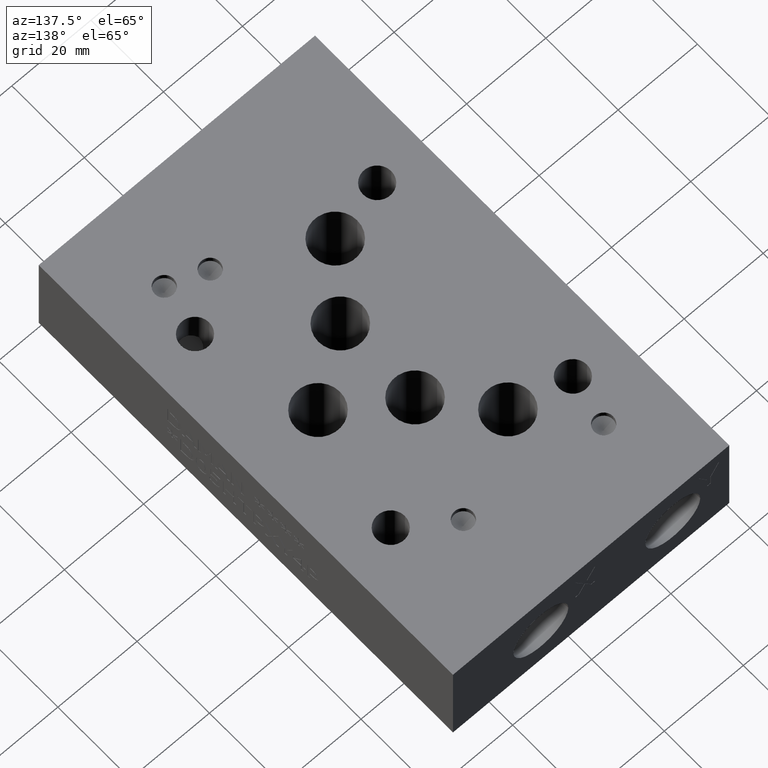
[diagram: clean part render]
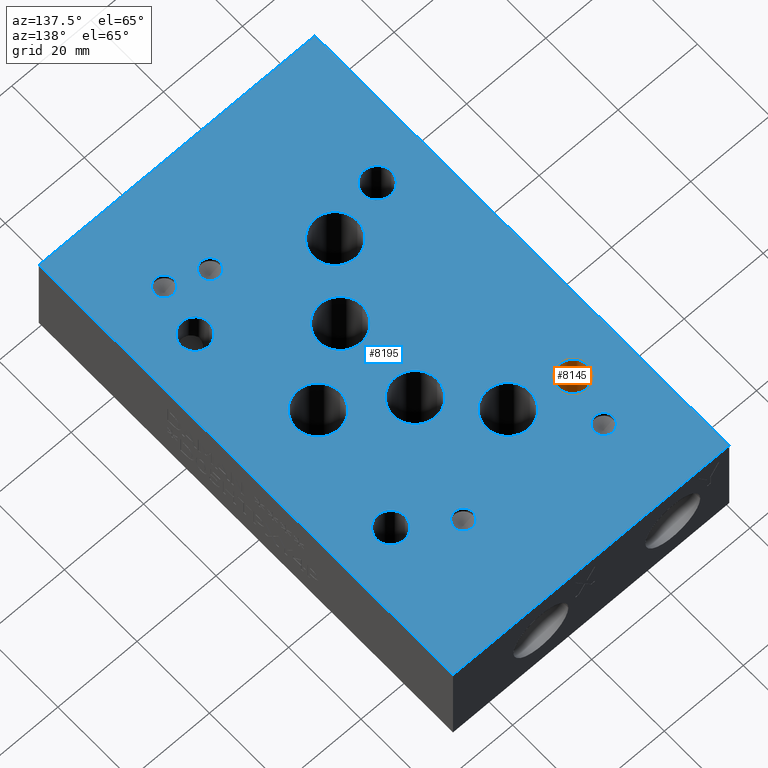
[diagram: same view with the hole feature highlighted: cylindrical wall and planar end face, labeled with their STEP entity ids]
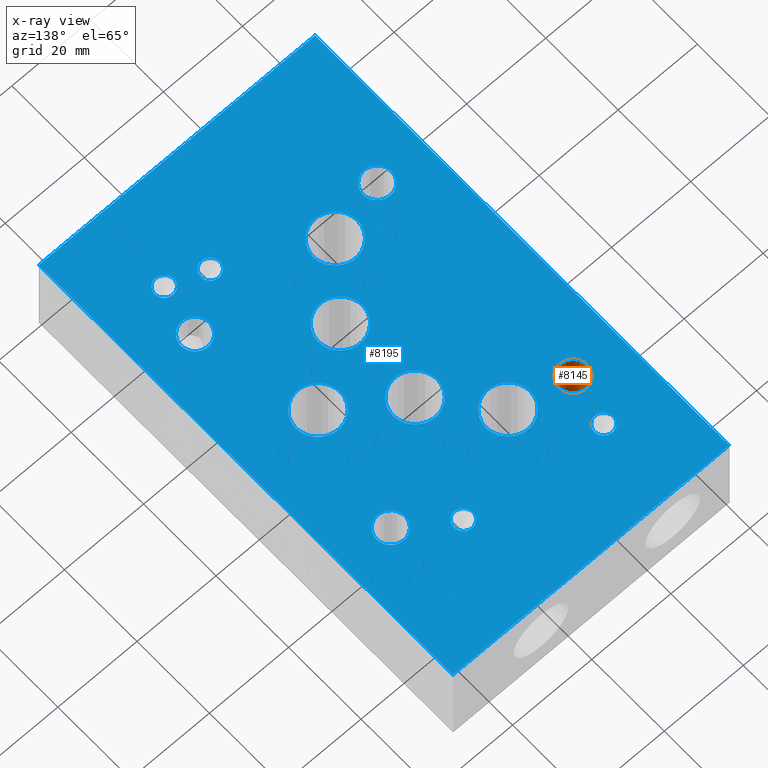
[diagram: x-ray of the same camera — body ghosted, the hole faces saturated]
A machine part, auxiliary view. The highlighted faces form one hole feature of diameter 7.1374 mm: the cylindrical wall (entity #8145, orange) and its adjacent planar end face (entity #8195, blue) — they share a circular edge in the B-rep.
The next image is the same camera in x-ray (body ghosted, the hole faces saturated) — the bore reads through the body.
Wall:
#145=B_SPLINE_CURVE_WITH_KNOTS('',3,(#13252,#13253,#13254,#13255,#13256,
#13257,#13258,#13259,#13260,#13261,#13262,#13263,#13264,#13265,#13266,#13267,
#13268,#13269),.UNSPECIFIED.,.F.,.F.,(4,2,2,2,2,2,2,2,4),(2.39074871442482,
2.42851078688732,2.54822982737239,2.78766790834252,2.90609728889542,3.02452666944832,
3.13326355568909,3.24200044192987,3.25808382290302),.UNSPECIFIED.);
#146=B_SPLINE_CURVE_WITH_KNOTS('',3,(#13271,#13272,#13273,#13274,#13275,
#13276),.UNSPECIFIED.,.F.,.F.,(4,2,4),(1.78812976311942,1.86625273411116,
1.9443757051029),.UNSPECIFIED.);
#147=B_SPLINE_CURVE_WITH_KNOTS('',3,(#13278,#13279,#13280,#13281,#13282,
#13283,#13284,#13285,#13286,#13287,#13288,#13289,#13290,#13291,#13292,#13293,
#13294,#13295),.UNSPECIFIED.,.F.,.F.,(4,2,2,2,2,2,2,2,4),(1.3594996699015,
1.37558305087465,1.48431993711543,1.5930568233562,1.7114862039091,1.82991558446201,
2.06935366543213,2.1890727059172,2.2268347783797),.UNSPECIFIED.);
#148=B_SPLINE_CURVE_WITH_KNOTS('',3,(#13296,#13297,#13298,#13299,#13300,
#13301,#13302,#13303,#13304,#13305,#13306,#13307,#13308,#13309,#13310,#13311,
#13312,#13313,#13314,#13315,#13316),.UNSPECIFIED.,.F.,.F.,(4,2,2,2,3,2,
2,2,2,4),(-0.561485721717972,-0.41025701575969,-0.264184277794467,-0.118111539829243,
0.,0.0920916361810437,0.184183272362087,0.368366544724175,0.552549817086262,
0.593107513323987),.UNSPECIFIED.);
#596=FACE_BOUND('',#1540,.T.);
#629=CIRCLE('',#8224,3.5687);
#644=CIRCLE('',#8541,3.5687);
#693=CYLINDRICAL_SURFACE('',#8540,3.5687);
#1082=FACE_OUTER_BOUND('',#1539,.T.);
#1539=EDGE_LOOP('',(#7243,#7244,#7245,#7246));
#1540=EDGE_LOOP('',(#7247,#7248,#7249,#7250));
#2492=LINE('',#13248,#3402);
#3402=VECTOR('',#10169,3.5687);
#3451=VERTEX_POINT('',#10432);
#4119=VERTEX_POINT('',#13247);
#4120=VERTEX_POINT('',#13250);
#4121=VERTEX_POINT('',#13251);
#4122=VERTEX_POINT('',#13270);
#4123=VERTEX_POINT('',#13277);
#4189=EDGE_CURVE('',#3451,#3451,#629,.T.);
#5185=EDGE_CURVE('',#3451,#4119,#2492,.T.);
#5186=EDGE_CURVE('',#4119,#4119,#644,.T.);
#5187=EDGE_CURVE('',#4120,#4121,#145,.T.);
#5188=EDGE_CURVE('',#4120,#4122,#146,.T.);
#5189=EDGE_CURVE('',#4123,#4122,#147,.T.);
#5190=EDGE_CURVE('',#4123,#4121,#148,.T.);
#7243=ORIENTED_EDGE('',*,*,#4189,.F.);
#7244=ORIENTED_EDGE('',*,*,#5185,.T.);
#7245=ORIENTED_EDGE('',*,*,#5186,.F.);
#7246=ORIENTED_EDGE('',*,*,#5185,.F.);
#7247=ORIENTED_EDGE('',*,*,#5187,.F.);
#7248=ORIENTED_EDGE('',*,*,#5188,.T.);
#7249=ORIENTED_EDGE('',*,*,#5189,.F.);
#7250=ORIENTED_EDGE('',*,*,#5190,.T.);
#8145=ADVANCED_FACE('',(#1082,#596),#693,.F.);
#8224=AXIS2_PLACEMENT_3D('',#10433,#8672,#8673);
#8540=AXIS2_PLACEMENT_3D('',#13246,#10167,#10168);
#8541=AXIS2_PLACEMENT_3D('',#13249,#10170,#10171);
#8672=DIRECTION('center_axis',(0.,0.,1.));
#8673=DIRECTION('ref_axis',(1.,0.,0.));
#10167=DIRECTION('center_axis',(0.,0.,-1.));
#10168=DIRECTION('ref_axis',(1.,0.,0.));
#10169=DIRECTION('',(0.,0.,1.));
#10170=DIRECTION('center_axis',(0.,0.,-1.));
#10171=DIRECTION('ref_axis',(1.,0.,0.));
#10432=CARTESIAN_POINT('',(8.3439,84.1502,-1.77635683940025E-14));
#10433=CARTESIAN_POINT('Origin',(11.9126,84.1502,0.));
#13246=CARTESIAN_POINT('Origin',(11.9126,84.1502,136.340282015258));
#13247=CARTESIAN_POINT('',(8.3439,84.1502,25.4));
#13248=CARTESIAN_POINT('',(8.3439,84.1502,136.340282015258));
#13249=CARTESIAN_POINT('Origin',(11.9126,84.1502,25.4));
#13250=CARTESIAN_POINT('',(8.97570185657554,86.1775749,11.8982972955294));
#13251=CARTESIAN_POINT('',(14.8494981434245,86.1775749,7.37150204992584));
#13252=CARTESIAN_POINT('Ctrl Pts',(8.97570185657554,86.1775749,11.8982972955294));
#13253=CARTESIAN_POINT('Ctrl Pts',(8.99389973310147,86.2039367286797,11.7780128893835));
#13254=CARTESIAN_POINT('Ctrl Pts',(9.01608079991804,86.2353178767443,11.6590637539243));
#13255=CARTESIAN_POINT('Ctrl Pts',(9.12466402353244,86.3823143055666,11.1686329887197));
#13256=CARTESIAN_POINT('Ctrl Pts',(9.24581326000249,86.5320529563778,10.8089874363444));
#13257=CARTESIAN_POINT('Ctrl Pts',(9.71976579528688,87.0005445584066,9.77616786292625));
#13258=CARTESIAN_POINT('Ctrl Pts',(10.1862139534486,87.3340165167231,9.14969986857952));
#13259=CARTESIAN_POINT('Ctrl Pts',(11.0608741867527,87.629209681587,8.39417310260469));
#13260=CARTESIAN_POINT('Ctrl Pts',(11.4100987458025,87.7030615193763,8.1508637367299));
#13261=CARTESIAN_POINT('Ctrl Pts',(12.1571739213819,87.7300765419145,7.75866273511157));
#13262=CARTESIAN_POINT('Ctrl Pts',(12.5551144958514,87.6814120911789,7.60981870093533));
#13263=CARTESIAN_POINT('Ctrl Pts',(13.2596831045713,87.4735457005353,7.42608488679604));
#13264=CARTESIAN_POINT('Ctrl Pts',(13.6141465259832,87.3109108879078,7.371880532487));
#13265=CARTESIAN_POINT('Ctrl Pts',(14.2520695132581,86.8727423048925,7.33112644133141));
#13266=CARTESIAN_POINT('Ctrl Pts',(14.5353680621745,86.597176738338,7.34242668834895));
#13267=CARTESIAN_POINT('Ctrl Pts',(14.7866854998948,86.2663564062275,7.36500246439352));
#13268=CARTESIAN_POINT('Ctrl Pts',(14.8184676153082,86.2225263790846,7.36815529309775));
#13269=CARTESIAN_POINT('Ctrl Pts',(14.8494981434245,86.1775749,7.37150204992584));
#13270=CARTESIAN_POINT('',(8.97570185657554,86.1775749,13.5017027044706));
#13271=CARTESIAN_POINT('Ctrl Pts',(8.97570185657554,86.1775749,11.8982972955294));
#13272=CARTESIAN_POINT('Ctrl Pts',(8.96403284106997,86.1606709174293,12.1711549962927));
#13273=CARTESIAN_POINT('Ctrl Pts',(8.9586286740719,86.1526168136516,12.4395900966942));
#13274=CARTESIAN_POINT('Ctrl Pts',(8.9586286740719,86.1526168136516,12.9604099033058));
#13275=CARTESIAN_POINT('Ctrl Pts',(8.96403284106997,86.1606709174293,13.2288450037073));
#13276=CARTESIAN_POINT('Ctrl Pts',(8.97570185657554,86.1775749,13.5017027044706));
#13277=CARTESIAN_POINT('',(14.8494981434245,86.1775749,18.0284979500742));
#13278=CARTESIAN_POINT('Ctrl Pts',(14.8494981434245,86.1775749,18.0284979500742));
#13279=CARTESIAN_POINT('Ctrl Pts',(14.8184676153082,86.2225263790846,18.0318447069022));
#13280=CARTESIAN_POINT('Ctrl Pts',(14.7866854998948,86.2663564062275,18.0349975356065));
#13281=CARTESIAN_POINT('Ctrl Pts',(14.5353680621745,86.5971767383379,18.057573311651));
#13282=CARTESIAN_POINT('Ctrl Pts',(14.2520695132581,86.8727423048925,18.0688735586686));
#13283=CARTESIAN_POINT('Ctrl Pts',(13.6141465259831,87.3109108879078,18.028119467513));
#13284=CARTESIAN_POINT('Ctrl Pts',(13.2596831045713,87.4735457005353,17.973915113204));
#13285=CARTESIAN_POINT('Ctrl Pts',(12.5551144958514,87.6814120911789,17.7901812990647));
#13286=CARTESIAN_POINT('Ctrl Pts',(12.1571739213819,87.7300765419145,17.6413372648884));
#13287=CARTESIAN_POINT('Ctrl Pts',(11.4100987458025,87.7030615193763,17.2491362632701));
#13288=CARTESIAN_POINT('Ctrl Pts',(11.0608741867527,87.629209681587,17.0058268973953));
#13289=CARTESIAN_POINT('Ctrl Pts',(10.1862139534486,87.3340165167231,16.2503001314205));
#13290=CARTESIAN_POINT('Ctrl Pts',(9.71976579528687,87.0005445584066,15.6238321370737));
#13291=CARTESIAN_POINT('Ctrl Pts',(9.24581326000249,86.5320529563778,14.5910125636556));
#13292=CARTESIAN_POINT('Ctrl Pts',(9.12466402353244,86.3823143055665,14.2313670112802));
#13293=CARTESIAN_POINT('Ctrl Pts',(9.01608079991804,86.2353178767443,13.7409362460757));
#13294=CARTESIAN_POINT('Ctrl Pts',(8.99389973310147,86.2039367286797,13.6219871106165));
#13295=CARTESIAN_POINT('Ctrl Pts',(8.97570185657554,86.1775749,13.5017027044706));
#13296=CARTESIAN_POINT('Ctrl Pts',(14.8494981434245,86.1775749,18.0284979500742));
#13297=CARTESIAN_POINT('Ctrl Pts',(15.0164886833449,85.9356688733141,17.5890639636878));
#13298=CARTESIAN_POINT('Ctrl Pts',(15.1456905599942,85.6849309234344,17.1259766885174));
#13299=CARTESIAN_POINT('Ctrl Pts',(15.3362171948747,85.1905041562585,16.1976760680939));
#13300=CARTESIAN_POINT('Ctrl Pts',(15.3993271823331,84.9466434850534,15.7333736635573));
#13301=CARTESIAN_POINT('Ctrl Pts',(15.4739493077069,84.4794103474131,14.8116930315051));
#13302=CARTESIAN_POINT('Ctrl Pts',(15.4846379204943,84.2531756679064,14.3557020158475));
#13303=CARTESIAN_POINT('Ctrl Pts',(15.4768739194686,83.9176327166314,13.5415569907774));
#13304=CARTESIAN_POINT('Ctrl Pts',(15.4607799362148,83.768049728192,13.0937051327641));
#13305=CARTESIAN_POINT('Ctrl Pts',(15.4607799362148,83.768049728192,12.7));
#13306=CARTESIAN_POINT('Ctrl Pts',(15.4607799362148,83.768049728192,12.3930278793965));
#13307=CARTESIAN_POINT('Ctrl Pts',(15.4692598656739,83.8416849298672,12.1102162316419));
#13308=CARTESIAN_POINT('Ctrl Pts',(15.4807611817998,84.0351542108545,11.5542025267796));
#13309=CARTESIAN_POINT('Ctrl Pts',(15.4835919028878,84.155365206681,11.281127764228));
#13310=CARTESIAN_POINT('Ctrl Pts',(15.4692711395723,84.5390682599603,10.4554886687153));
#13311=CARTESIAN_POINT('Ctrl Pts',(15.4296878568947,84.8258648591993,9.9006552610877));
#13312=CARTESIAN_POINT('Ctrl Pts',(15.2665844089851,85.40607459861,8.79325884475476));
#13313=CARTESIAN_POINT('Ctrl Pts',(15.1445090860163,85.7004317691492,8.24454155719337));
#13314=CARTESIAN_POINT('Ctrl Pts',(14.9333893972338,86.0517579785541,7.60059215583747));
#13315=CARTESIAN_POINT('Ctrl Pts',(14.8927901992759,86.1148611126018,7.485424675068));
#13316=CARTESIAN_POINT('Ctrl Pts',(14.8494981434245,86.1775749,7.37150204992584));
End face:
#610=FACE_BOUND('',#1604,.T.);
#611=FACE_BOUND('',#1605,.T.);
#612=FACE_BOUND('',#1606,.T.);
#613=FACE_BOUND('',#1607,.T.);
#614=FACE_BOUND('',#1608,.T.);
#615=FACE_BOUND('',#1609,.T.);
#616=FACE_BOUND('',#1610,.T.);
#617=FACE_BOUND('',#1611,.T.);
#618=FACE_BOUND('',#1612,.T.);
#619=FACE_BOUND('',#1613,.T.);
#620=FACE_BOUND('',#1614,.T.);
#621=FACE_BOUND('',#1615,.T.);
#622=FACE_BOUND('',#1616,.T.);
#643=CIRCLE('',#8539,3.5687);
#644=CIRCLE('',#8541,3.5687);
#645=CIRCLE('',#8543,3.5687);
#646=CIRCLE('',#8545,3.5687);
#658=CIRCLE('',#8567,5.5626);
#661=CIRCLE('',#8573,5.5626);
#664=CIRCLE('',#8579,5.5626);
#667=CIRCLE('',#8585,5.5626);
#670=CIRCLE('',#8591,5.5626);
#682=CIRCLE('',#8619,2.3749);
#684=CIRCLE('',#8623,2.3749);
#686=CIRCLE('',#8627,2.3749);
#688=CIRCLE('',#8631,2.3749);
#1132=FACE_OUTER_BOUND('',#1603,.T.);
#1603=EDGE_LOOP('',(#7448,#7449,#7450,#7451));
#1604=EDGE_LOOP('',(#7452));
#1605=EDGE_LOOP('',(#7453));
#1606=EDGE_LOOP('',(#7454));
#1607=EDGE_LOOP('',(#7455));
#1608=EDGE_LOOP('',(#7456));
#1609=EDGE_LOOP('',(#7457));
#1610=EDGE_LOOP('',(#7458));
#1611=EDGE_LOOP('',(#7459));
#1612=EDGE_LOOP('',(#7460));
#1613=EDGE_LOOP('',(#7461));
#1614=EDGE_LOOP('',(#7462));
#1615=EDGE_LOOP('',(#7463));
#1616=EDGE_LOOP('',(#7464));
#1982=LINE('',#12001,#2892);
#2461=LINE('',#13116,#3371);
#2524=LINE('',#13486,#3434);
#2526=LINE('',#13489,#3436);
#2892=VECTOR('',#9267,10.);
#3371=VECTOR('',#10100,10.);
#3434=VECTOR('',#10385,10.);
#3436=VECTOR('',#10389,10.);
#3760=VERTEX_POINT('',#11998);
#3761=VERTEX_POINT('',#12000);
#4092=VERTEX_POINT('',#13115);
#4114=VERTEX_POINT('',#13184);
#4119=VERTEX_POINT('',#13247);
#4124=VERTEX_POINT('',#13318);
#4125=VERTEX_POINT('',#13322);
#4133=VERTEX_POINT('',#13357);
#4136=VERTEX_POINT('',#13368);
#4139=VERTEX_POINT('',#13379);
#4142=VERTEX_POINT('',#13390);
#4145=VERTEX_POINT('',#13401);
#4160=VERTEX_POINT('',#13454);
#4163=VERTEX_POINT('',#13463);
#4166=VERTEX_POINT('',#13472);
#4169=VERTEX_POINT('',#13481);
#4170=VERTEX_POINT('',#13485);
#4649=EDGE_CURVE('',#3761,#3760,#1982,.T.);
#5145=EDGE_CURVE('',#4092,#3761,#2461,.T.);
#5180=EDGE_CURVE('',#4114,#4114,#643,.T.);
#5186=EDGE_CURVE('',#4119,#4119,#644,.T.);
#5192=EDGE_CURVE('',#4124,#4124,#645,.T.);
#5194=EDGE_CURVE('',#4125,#4125,#646,.T.);
#5211=EDGE_CURVE('',#4133,#4133,#658,.T.);
#5216=EDGE_CURVE('',#4136,#4136,#661,.T.);
#5221=EDGE_CURVE('',#4139,#4139,#664,.T.);
#5226=EDGE_CURVE('',#4142,#4142,#667,.T.);
#5231=EDGE_CURVE('',#4145,#4145,#670,.T.);
#5252=EDGE_CURVE('',#4160,#4160,#682,.T.);
#5256=EDGE_CURVE('',#4163,#4163,#684,.T.);
#5260=EDGE_CURVE('',#4166,#4166,#686,.T.);
#5264=EDGE_CURVE('',#4169,#4169,#688,.T.);
#5266=EDGE_CURVE('',#4170,#4092,#2524,.T.);
#5268=EDGE_CURVE('',#3760,#4170,#2526,.T.);
#7448=ORIENTED_EDGE('',*,*,#5145,.T.);
#7449=ORIENTED_EDGE('',*,*,#4649,.T.);
#7450=ORIENTED_EDGE('',*,*,#5268,.T.);
#7451=ORIENTED_EDGE('',*,*,#5266,.T.);
#7452=ORIENTED_EDGE('',*,*,#5180,.T.);
#7453=ORIENTED_EDGE('',*,*,#5186,.T.);
#7454=ORIENTED_EDGE('',*,*,#5192,.T.);
#7455=ORIENTED_EDGE('',*,*,#5194,.T.);
#7456=ORIENTED_EDGE('',*,*,#5211,.T.);
#7457=ORIENTED_EDGE('',*,*,#5216,.T.);
#7458=ORIENTED_EDGE('',*,*,#5221,.T.);
#7459=ORIENTED_EDGE('',*,*,#5226,.T.);
#7460=ORIENTED_EDGE('',*,*,#5231,.T.);
#7461=ORIENTED_EDGE('',*,*,#5252,.T.);
#7462=ORIENTED_EDGE('',*,*,#5256,.T.);
#7463=ORIENTED_EDGE('',*,*,#5260,.T.);
#7464=ORIENTED_EDGE('',*,*,#5264,.T.);
#7781=PLANE('',#8635);
#8195=ADVANCED_FACE('',(#1132,#610,#611,#612,#613,#614,#615,#616,#617,#618,
#619,#620,#621,#622),#7781,.T.);
#8539=AXIS2_PLACEMENT_3D('',#13186,#10165,#10166);
#8541=AXIS2_PLACEMENT_3D('',#13249,#10170,#10171);
#8543=AXIS2_PLACEMENT_3D('',#13320,#10175,#10176);
#8545=AXIS2_PLACEMENT_3D('',#13324,#10180,#10181);
#8567=AXIS2_PLACEMENT_3D('',#13359,#10229,#10230);
#8573=AXIS2_PLACEMENT_3D('',#13370,#10243,#10244);
#8579=AXIS2_PLACEMENT_3D('',#13381,#10257,#10258);
#8585=AXIS2_PLACEMENT_3D('',#13392,#10271,#10272);
#8591=AXIS2_PLACEMENT_3D('',#13403,#10285,#10286);
#8619=AXIS2_PLACEMENT_3D('',#13455,#10350,#10351);
#8623=AXIS2_PLACEMENT_3D('',#13464,#10360,#10361);
#8627=AXIS2_PLACEMENT_3D('',#13473,#10370,#10371);
#8631=AXIS2_PLACEMENT_3D('',#13482,#10380,#10381);
#8635=AXIS2_PLACEMENT_3D('',#13491,#10392,#10393);
#9267=DIRECTION('',(0.,1.,0.));
#10100=DIRECTION('',(1.,0.,0.));
#10165=DIRECTION('center_axis',(0.,0.,-1.));
#10166=DIRECTION('ref_axis',(1.,0.,0.));
#10170=DIRECTION('center_axis',(0.,0.,-1.));
#10171=DIRECTION('ref_axis',(1.,0.,0.));
#10175=DIRECTION('center_axis',(0.,0.,-1.));
#10176=DIRECTION('ref_axis',(1.,0.,0.));
#10180=DIRECTION('center_axis',(0.,0.,-1.));
#10181=DIRECTION('ref_axis',(1.,0.,0.));
#10229=DIRECTION('center_axis',(0.,0.,-1.));
#10230=DIRECTION('ref_axis',(1.,0.,0.));
#10243=DIRECTION('center_axis',(0.,0.,-1.));
#10244=DIRECTION('ref_axis',(1.,0.,0.));
#10257=DIRECTION('center_axis',(0.,0.,-1.));
#10258=DIRECTION('ref_axis',(1.,0.,0.));
#10271=DIRECTION('center_axis',(0.,0.,-1.));
#10272=DIRECTION('ref_axis',(1.,0.,0.));
#10285=DIRECTION('center_axis',(0.,0.,-1.));
#10286=DIRECTION('ref_axis',(1.,0.,0.));
#10350=DIRECTION('center_axis',(0.,0.,-1.));
#10351=DIRECTION('ref_axis',(1.,0.,0.));
#10360=DIRECTION('center_axis',(0.,0.,-1.));
#10361=DIRECTION('ref_axis',(1.,0.,0.));
#10370=DIRECTION('center_axis',(0.,0.,-1.));
#10371=DIRECTION('ref_axis',(1.,0.,0.));
#10380=DIRECTION('center_axis',(0.,0.,-1.));
#10381=DIRECTION('ref_axis',(1.,0.,0.));
#10385=DIRECTION('',(0.,-1.,0.));
#10389=DIRECTION('',(-1.,0.,0.));
#10392=DIRECTION('center_axis',(0.,0.,1.));
#10393=DIRECTION('ref_axis',(1.,0.,0.));
#11998=CARTESIAN_POINT('',(69.85,114.3,25.4));
#12000=CARTESIAN_POINT('',(69.85,0.,25.4));
#12001=CARTESIAN_POINT('',(69.85,0.,25.4));
#13115=CARTESIAN_POINT('',(0.,0.,25.4));
#13116=CARTESIAN_POINT('',(0.,0.,25.4));
#13184=CARTESIAN_POINT('',(54.3941,30.1498,25.4));
#13186=CARTESIAN_POINT('Origin',(57.9628,30.1498,25.4));
#13247=CARTESIAN_POINT('',(8.3439,84.1502,25.4));
#13249=CARTESIAN_POINT('Origin',(11.9126,84.1502,25.4));
#13318=CARTESIAN_POINT('',(54.3941,84.1502,25.4));
#13320=CARTESIAN_POINT('Origin',(57.9628,84.1502,25.4));
#13322=CARTESIAN_POINT('',(8.3439,30.1498,25.4));
#13324=CARTESIAN_POINT('Origin',(11.9126,30.1498,25.4));
#13357=CARTESIAN_POINT('',(19.8628,33.3248,25.4));
#13359=CARTESIAN_POINT('Origin',(25.4254,33.3248,25.4));
#13368=CARTESIAN_POINT('',(30.9626,46.8376,25.4));
#13370=CARTESIAN_POINT('Origin',(36.5252,46.8376,25.4));
#13379=CARTESIAN_POINT('',(30.9626,67.4624,25.4));
#13381=CARTESIAN_POINT('Origin',(36.5252,67.4624,25.4));
#13390=CARTESIAN_POINT('',(19.8628,80.9752,25.4));
#13392=CARTESIAN_POINT('Origin',(25.4254,80.9752,25.4));
#13401=CARTESIAN_POINT('',(46.0502,57.15,25.4));
#13403=CARTESIAN_POINT('Origin',(51.6128,57.15,25.4));
#13454=CARTESIAN_POINT('',(44.4881,92.075,25.4));
#13455=CARTESIAN_POINT('Origin',(46.863,92.075,25.4));
#13463=CARTESIAN_POINT('',(53.2003,19.05,25.4));
#13464=CARTESIAN_POINT('Origin',(55.5752,19.05,25.4));
#13472=CARTESIAN_POINT('',(11.9253,95.25,25.4));
#13473=CARTESIAN_POINT('Origin',(14.3002,95.25,25.4));
#13481=CARTESIAN_POINT('',(44.4881,22.225,25.4));
#13482=CARTESIAN_POINT('Origin',(46.863,22.225,25.4));
#13485=CARTESIAN_POINT('',(0.,114.3,25.4));
#13486=CARTESIAN_POINT('',(0.,114.3,25.4));
#13489=CARTESIAN_POINT('',(69.85,114.3,25.4));
#13491=CARTESIAN_POINT('Origin',(34.925,57.15,25.4));